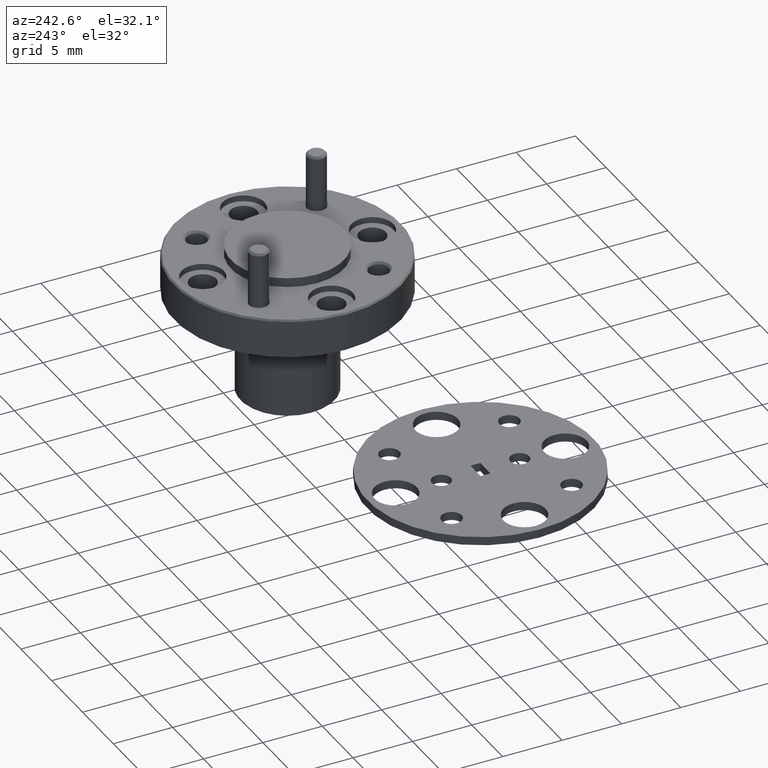
[diagram: clean part render]
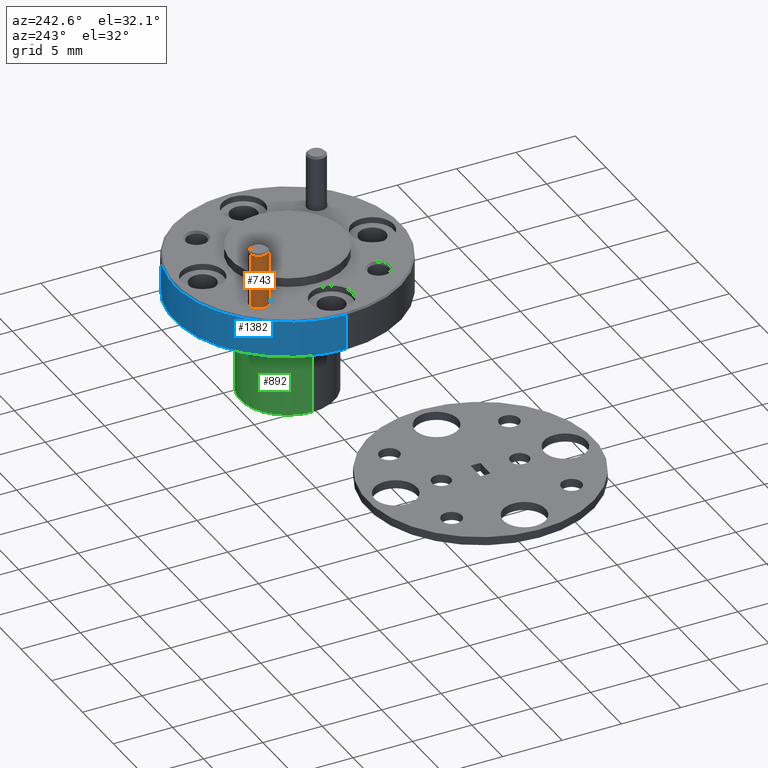
[diagram: same view with three faces highlighted in distinct colors, each labeled with its STEP entity id]
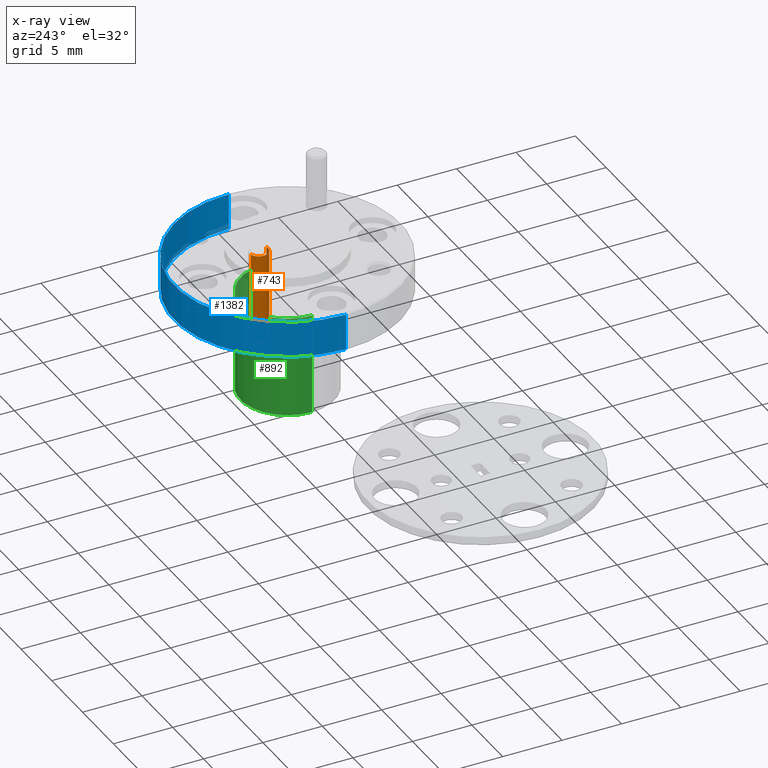
[diagram: x-ray of the same camera — body ghosted, the three highlighted faces saturated]
A machine part, auxiliary view with three faces highlighted in distinct colors.
The next image is the same camera in x-ray (body ghosted, the three faces saturated) — at least one of them is partly hidden behind the body in this view.
Their STEP definitions:

[orange] entity #743 — the highlighted cylindrical surface (edge-blend (fillet) strip) has radius 0.7938 mm, axis along (0, -0, -1).
#64 = AXIS2_PLACEMENT_3D ( 'NONE', #975, #1199, #1625 ) ;
#190 = EDGE_LOOP ( 'NONE', ( #707, #2628, #1869, #1834 ) ) ;
#397 = VERTEX_POINT ( 'NONE', #601 ) ;
#450 = VECTOR ( 'NONE', #2572, 39.37007874015748100 ) ;
#601 = CARTESIAN_POINT ( 'NONE',  ( -1.103912286156531100, 1.451483328368504000, -0.4308440517253733800 ) ) ;
#707 = ORIENTED_EDGE ( 'NONE', *, *, #732, .F. ) ;
#732 = EDGE_CURVE ( 'NONE', #780, #1589, #2826, .T. ) ;
#743 = ADVANCED_FACE ( 'NONE', ( #1249 ), #2226, .T. ) ;
#780 = VERTEX_POINT ( 'NONE', #990 ) ;
#802 = VERTEX_POINT ( 'NONE', #2854 ) ;
#843 = DIRECTION ( 'NONE',  ( 1.285051146532522300E-030, -3.332540302893697900E-030, -1.000000000000000000 ) ) ;
#962 = VECTOR ( 'NONE', #843, 39.37007874015748100 ) ;
#975 = CARTESIAN_POINT ( 'NONE',  ( -1.095957662681084700, 1.421262698570898300, -0.1308440517253738300 ) ) ;
#990 = CARTESIAN_POINT ( 'NONE',  ( -1.088003039205638300, 1.391042068773293600, -0.1308440517253738300 ) ) ;
#1028 = DIRECTION ( 'NONE',  ( -0.2545479512142797600, 0.9670601535233538400, 0.0000000000000000000 ) ) ;
#1199 = DIRECTION ( 'NONE',  ( 1.285051146532522300E-030, -3.332540302893697900E-030, -1.000000000000000000 ) ) ;
#1249 = FACE_OUTER_BOUND ( 'NONE', #190, .T. ) ;
#1274 = AXIS2_PLACEMENT_3D ( 'NONE', #1498, #2406, #1028 ) ;
#1417 = DIRECTION ( 'NONE',  ( -0.2545479512142756500, 0.9670601535233549500, 0.0000000000000000000 ) ) ;
#1498 = CARTESIAN_POINT ( 'NONE',  ( -1.095957662681085200, 1.421262698570899200, -0.4308440517253733800 ) ) ;
#1511 = CIRCLE ( 'NONE', #1274, 0.03125000000000004900 ) ;
#1589 = VERTEX_POINT ( 'NONE', #2893 ) ;
#1625 = DIRECTION ( 'NONE',  ( -0.2545479512142756500, 0.9670601535233549500, 0.0000000000000000000 ) ) ;
#1655 = DIRECTION ( 'NONE',  ( 1.285051146532522300E-030, -3.332540302893697900E-030, -1.000000000000000000 ) ) ;
#1834 = ORIENTED_EDGE ( 'NONE', *, *, #2454, .T. ) ;
#1869 = ORIENTED_EDGE ( 'NONE', *, *, #2431, .T. ) ;
#1870 = CARTESIAN_POINT ( 'NONE',  ( -1.095957662681084700, 1.421262698570898900, -0.1245940517253733100 ) ) ;
#2104 = CARTESIAN_POINT ( 'NONE',  ( -1.088003039205638600, 1.391042068773294100, -0.1245940517253733100 ) ) ;
#2151 = LINE ( 'NONE', #2220, #962 ) ;
#2220 = CARTESIAN_POINT ( 'NONE',  ( -1.103912286156530700, 1.451483328368503800, -0.1245940517253733100 ) ) ;
#2226 = CYLINDRICAL_SURFACE ( 'NONE', #2785, 0.03125000000000001400 ) ;
#2406 = DIRECTION ( 'NONE',  ( -1.285051146532522300E-030, 3.332540302893697900E-030, 1.000000000000000000 ) ) ;
#2431 = EDGE_CURVE ( 'NONE', #802, #397, #2151, .T. ) ;
#2454 = EDGE_CURVE ( 'NONE', #397, #1589, #1511, .T. ) ;
#2572 = DIRECTION ( 'NONE',  ( 1.285051146532522300E-030, -3.332540302893697900E-030, -1.000000000000000000 ) ) ;
#2575 = CIRCLE ( 'NONE', #64, 0.03125000000000001400 ) ;
#2628 = ORIENTED_EDGE ( 'NONE', *, *, #2874, .T. ) ;
#2785 = AXIS2_PLACEMENT_3D ( 'NONE', #1870, #1655, #1417 ) ;
#2826 = LINE ( 'NONE', #2104, #450 ) ;
#2854 = CARTESIAN_POINT ( 'NONE',  ( -1.103912286156530900, 1.451483328368503100, -0.1308440517253738300 ) ) ;
#2874 = EDGE_CURVE ( 'NONE', #780, #802, #2575, .T. ) ;
#2893 = CARTESIAN_POINT ( 'NONE',  ( -1.088003039205638800, 1.391042068773294300, -0.4308440517253733800 ) ) ;

[blue] entity #1382 — the highlighted cylindrical surface (partial cylindrical patch) has radius 9.525 mm, axis along (-0, -0, -1).
#95 = DIRECTION ( 'NONE',  ( -0.0000000000000000000, -0.0000000000000000000, -1.000000000000000000 ) ) ;
#331 = CARTESIAN_POINT ( 'NONE',  ( -1.272083880472367500, 1.222388916362182800, -0.3120940517253735800 ) ) ;
#372 = CARTESIAN_POINT ( 'NONE',  ( -0.5220838804723676500, 1.222388916362182800, -0.4320940517253734600 ) ) ;
#383 = CARTESIAN_POINT ( 'NONE',  ( -0.8970838804723675300, 1.222388916362182800, -0.3070940517253739100 ) ) ;
#437 = AXIS2_PLACEMENT_3D ( 'NONE', #2543, #2115, #947 ) ;
#462 = EDGE_CURVE ( 'NONE', #2823, #2423, #1288, .T. ) ;
#525 = VERTEX_POINT ( 'NONE', #1473 ) ;
#724 = DIRECTION ( 'NONE',  ( 0.0000000000000000000, 0.0000000000000000000, -1.000000000000000000 ) ) ;
#766 = CIRCLE ( 'NONE', #437, 0.3749999999999999400 ) ;
#781 = CARTESIAN_POINT ( 'NONE',  ( -0.5220838804723676500, 1.222388916362182800, -0.3070940517253739100 ) ) ;
#947 = DIRECTION ( 'NONE',  ( 1.000000000000000000, 0.0000000000000000000, 0.0000000000000000000 ) ) ;
#964 = VECTOR ( 'NONE', #95, 39.37007874015748100 ) ;
#997 = EDGE_LOOP ( 'NONE', ( #2515, #1772, #1552, #1161 ) ) ;
#1007 = DIRECTION ( 'NONE',  ( -1.000000000000000000, 0.0000000000000000000, 0.0000000000000000000 ) ) ;
#1082 = AXIS2_PLACEMENT_3D ( 'NONE', #383, #1966, #1007 ) ;
#1086 = FACE_OUTER_BOUND ( 'NONE', #997, .T. ) ;
#1161 = ORIENTED_EDGE ( 'NONE', *, *, #1604, .F. ) ;
#1288 = LINE ( 'NONE', #781, #964 ) ;
#1340 = VERTEX_POINT ( 'NONE', #331 ) ;
#1382 = ADVANCED_FACE ( 'NONE', ( #1086 ), #2030, .T. ) ;
#1473 = CARTESIAN_POINT ( 'NONE',  ( -1.272083880472367500, 1.222388916362182800, -0.4320940517253734600 ) ) ;
#1552 = ORIENTED_EDGE ( 'NONE', *, *, #1751, .T. ) ;
#1604 = EDGE_CURVE ( 'NONE', #1340, #525, #2758, .T. ) ;
#1606 = DIRECTION ( 'NONE',  ( -0.0000000000000000000, -0.0000000000000000000, -1.000000000000000000 ) ) ;
#1751 = EDGE_CURVE ( 'NONE', #2423, #525, #766, .T. ) ;
#1772 = ORIENTED_EDGE ( 'NONE', *, *, #462, .T. ) ;
#1966 = DIRECTION ( 'NONE',  ( -0.0000000000000000000, -0.0000000000000000000, -1.000000000000000000 ) ) ;
#2030 = CYLINDRICAL_SURFACE ( 'NONE', #1082, 0.3749999999999999400 ) ;
#2115 = DIRECTION ( 'NONE',  ( -0.0000000000000000000, -0.0000000000000000000, 1.000000000000000000 ) ) ;
#2206 = AXIS2_PLACEMENT_3D ( 'NONE', #2357, #724, #2574 ) ;
#2357 = CARTESIAN_POINT ( 'NONE',  ( -0.8970838804723675300, 1.222388916362182800, -0.3120940517253735800 ) ) ;
#2359 = CIRCLE ( 'NONE', #2206, 0.3749999999999999400 ) ;
#2373 = VECTOR ( 'NONE', #1606, 39.37007874015748100 ) ;
#2423 = VERTEX_POINT ( 'NONE', #372 ) ;
#2478 = CARTESIAN_POINT ( 'NONE',  ( -1.272083880472367500, 1.222388916362182800, -0.3070940517253739100 ) ) ;
#2515 = ORIENTED_EDGE ( 'NONE', *, *, #2757, .T. ) ;
#2543 = CARTESIAN_POINT ( 'NONE',  ( -0.8970838804723675300, 1.222388916362182800, -0.4320940517253734600 ) ) ;
#2574 = DIRECTION ( 'NONE',  ( 1.000000000000000000, 0.0000000000000000000, 0.0000000000000000000 ) ) ;
#2757 = EDGE_CURVE ( 'NONE', #1340, #2823, #2359, .T. ) ;
#2758 = LINE ( 'NONE', #2478, #2373 ) ;
#2808 = CARTESIAN_POINT ( 'NONE',  ( -0.5220838804723676500, 1.222388916362182800, -0.3120940517253735800 ) ) ;
#2823 = VERTEX_POINT ( 'NONE', #2808 ) ;

[green] entity #892 — the highlighted cylindrical surface (partial cylindrical patch) has radius 3.9751 mm, axis along (-0, -0, 1).
#79 = EDGE_CURVE ( 'NONE', #1151, #1306, #2725, .T. ) ;
#111 = DIRECTION ( 'NONE',  ( -0.0000000000000000000, -0.0000000000000000000, 1.000000000000000000 ) ) ;
#117 = ORIENTED_EDGE ( 'NONE', *, *, #1030, .T. ) ;
#241 = CARTESIAN_POINT ( 'NONE',  ( -0.8970838804723675300, 1.222388916362182800, -0.4370940517253738600 ) ) ;
#356 = CARTESIAN_POINT ( 'NONE',  ( -0.7405838804723676700, 1.222388916362182800, -0.7770940517253738200 ) ) ;
#520 = CARTESIAN_POINT ( 'NONE',  ( -0.7405838804723676700, 1.222388916362182800, -0.7720940517253736000 ) ) ;
#532 = CIRCLE ( 'NONE', #2412, 0.1564999999999999400 ) ;
#588 = DIRECTION ( 'NONE',  ( -1.000000000000000000, 0.0000000000000000000, 0.0000000000000000000 ) ) ;
#642 = VERTEX_POINT ( 'NONE', #1839 ) ;
#652 = AXIS2_PLACEMENT_3D ( 'NONE', #241, #2496, #2939 ) ;
#686 = VERTEX_POINT ( 'NONE', #1180 ) ;
#727 = LINE ( 'NONE', #1833, #2409 ) ;
#803 = DIRECTION ( 'NONE',  ( 1.000000000000000000, 0.0000000000000000000, 0.0000000000000000000 ) ) ;
#892 = ADVANCED_FACE ( 'NONE', ( #1861 ), #2529, .T. ) ;
#1030 = EDGE_CURVE ( 'NONE', #642, #1306, #2255, .T. ) ;
#1151 = VERTEX_POINT ( 'NONE', #520 ) ;
#1180 = CARTESIAN_POINT ( 'NONE',  ( -1.053583880472367600, 1.222388916362182800, -0.7720940517253736000 ) ) ;
#1306 = VERTEX_POINT ( 'NONE', #1915 ) ;
#1402 = EDGE_CURVE ( 'NONE', #1151, #686, #532, .T. ) ;
#1478 = CARTESIAN_POINT ( 'NONE',  ( -0.8970838804723675300, 1.222388916362182800, -0.7720940517253736000 ) ) ;
#1649 = EDGE_CURVE ( 'NONE', #686, #642, #727, .T. ) ;
#1776 = ORIENTED_EDGE ( 'NONE', *, *, #1402, .T. ) ;
#1833 = CARTESIAN_POINT ( 'NONE',  ( -1.053583880472367600, 1.222388916362182800, -0.7770940517253738200 ) ) ;
#1839 = CARTESIAN_POINT ( 'NONE',  ( -1.053583880472367600, 1.222388916362182800, -0.4370940517253738600 ) ) ;
#1861 = FACE_OUTER_BOUND ( 'NONE', #2545, .T. ) ;
#1915 = CARTESIAN_POINT ( 'NONE',  ( -0.7405838804723676700, 1.222388916362182800, -0.4370940517253738600 ) ) ;
#1938 = CARTESIAN_POINT ( 'NONE',  ( -0.8970838804723675300, 1.222388916362182800, -0.7770940517253738200 ) ) ;
#1946 = DIRECTION ( 'NONE',  ( 0.0000000000000000000, 0.0000000000000000000, 1.000000000000000000 ) ) ;
#2173 = DIRECTION ( 'NONE',  ( -0.0000000000000000000, -0.0000000000000000000, 1.000000000000000000 ) ) ;
#2221 = ORIENTED_EDGE ( 'NONE', *, *, #1649, .T. ) ;
#2255 = CIRCLE ( 'NONE', #652, 0.1564999999999999400 ) ;
#2409 = VECTOR ( 'NONE', #2738, 39.37007874015748100 ) ;
#2412 = AXIS2_PLACEMENT_3D ( 'NONE', #1478, #1946, #588 ) ;
#2496 = DIRECTION ( 'NONE',  ( -0.0000000000000000000, -0.0000000000000000000, -1.000000000000000000 ) ) ;
#2529 = CYLINDRICAL_SURFACE ( 'NONE', #2637, 0.1564999999999999400 ) ;
#2545 = EDGE_LOOP ( 'NONE', ( #1776, #2221, #117, #2853 ) ) ;
#2637 = AXIS2_PLACEMENT_3D ( 'NONE', #1938, #2173, #803 ) ;
#2725 = LINE ( 'NONE', #356, #2932 ) ;
#2738 = DIRECTION ( 'NONE',  ( -0.0000000000000000000, -0.0000000000000000000, 1.000000000000000000 ) ) ;
#2853 = ORIENTED_EDGE ( 'NONE', *, *, #79, .F. ) ;
#2932 = VECTOR ( 'NONE', #111, 39.37007874015748100 ) ;
#2939 = DIRECTION ( 'NONE',  ( 1.000000000000000000, 0.0000000000000000000, 0.0000000000000000000 ) ) ;